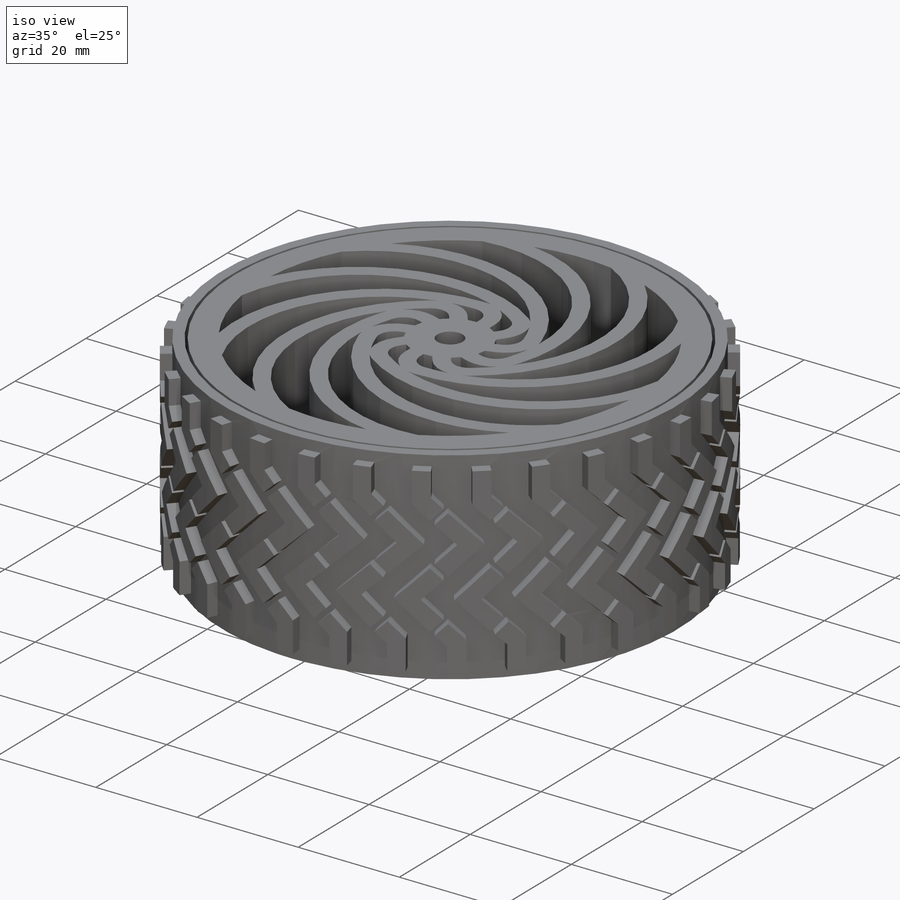
[diagram: iso view]
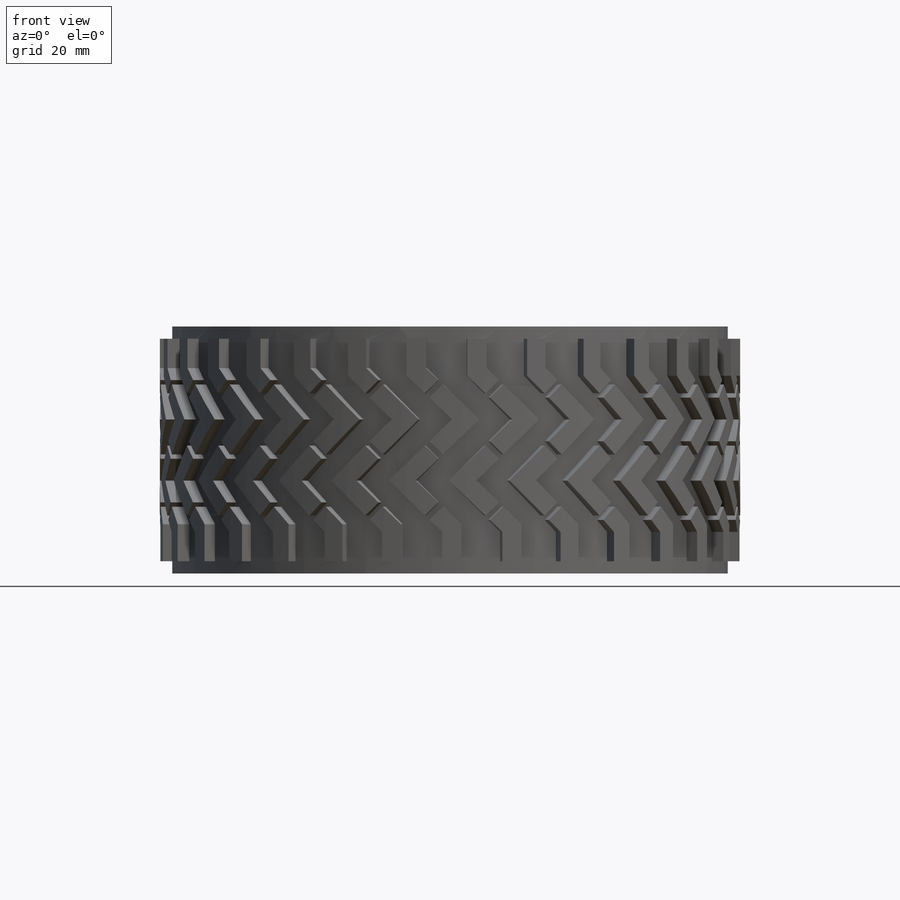
[diagram: front view]
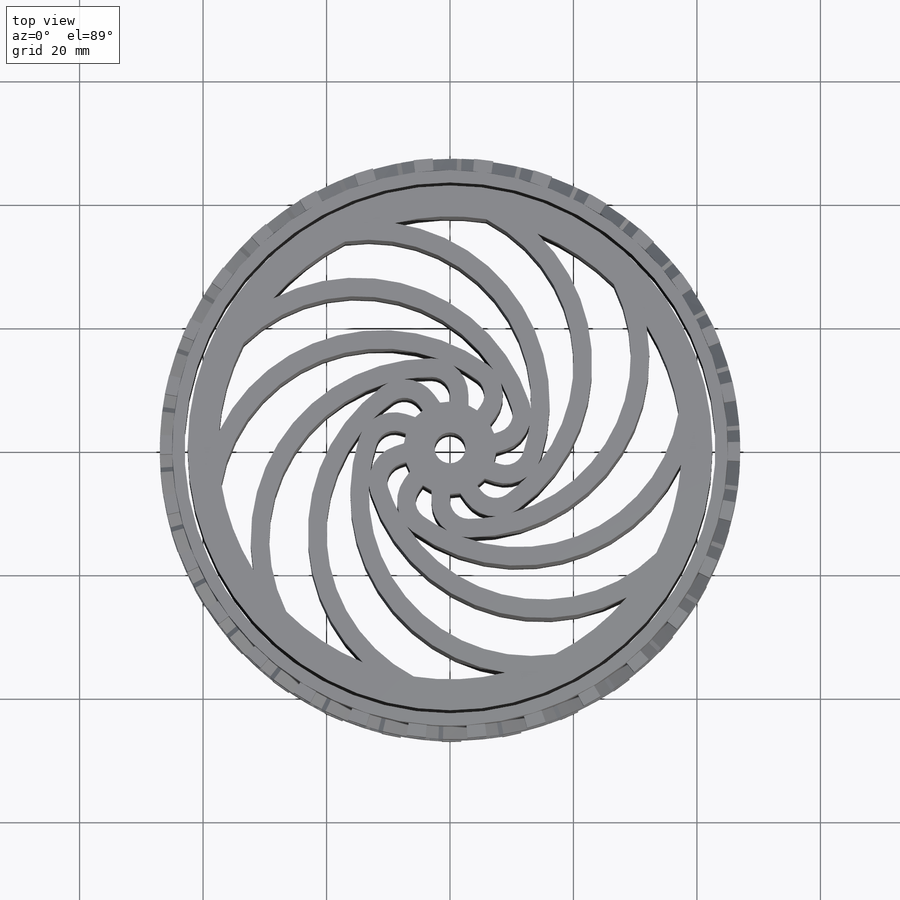
[diagram: top view]
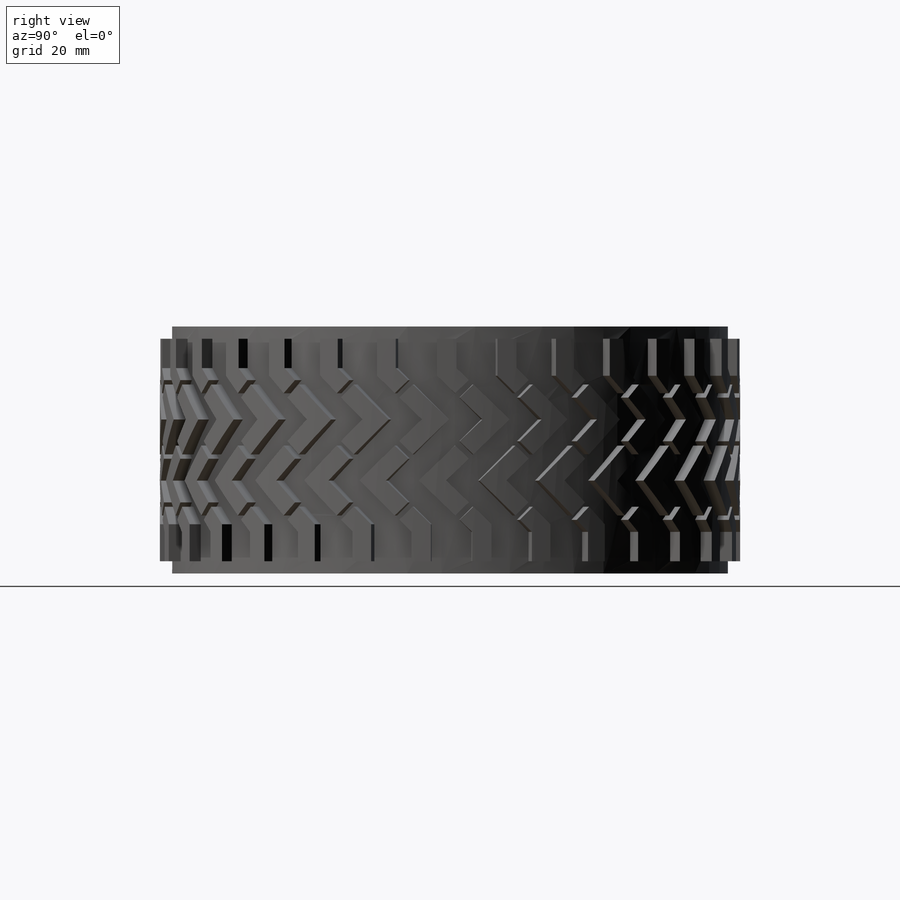
[diagram: right view]
SOLIDWORKS PART (.sldprt)
format: sldprt  version: not decoded by parser v0  size: 2,105,344 bytes
history: native  units: mm
features: sketch x8, extrude x3, pattern_circular x2, material x1, plane x1, sweep x1, cut_extrude x1 (+12 scaffold rows collapsed)
feature tree (29):
  scaffold x12  (default folders/planes/origin — collapsed)
  material  "Material <not specified>"
  sketch  "Sketch1"  dims[c1.D1=15.0mm c1.D3=5.0mm c1.D4=~33.139431mm c1.D5=75.0mm c1.D2=7.5mm c2.D4=3.0mm c2.D6=~25.42633mm c2.D8=~14.915508mm c2.D2=5.0mm c3.D4=5.0mm c3.D3=7.5mm c4.D4=7.5mm c4.D2=4.0mm c4.D3=4.0mm c4.D6=~18.000739mm c5.D6=45.0deg c5.D7=~13.463429mm c6.D7=45.0deg c6.D8=~3.421868mm]
  plane  "Plane1"
  sketch  "Sketch4"  dims[c1.D1=~0.953332mm c1.D2=~1.904352mm c2.D1=~12.147167mm c2.D2=~2.350835mm c3.D1=40.0mm c3.D2=5.0mm]
  sketch  "Sketch5"  dims[D1=75.0mm D2=5.0mm]
  sketch  "Sketch6"  dims[c1.D1=~13.877509mm c1.D2=~3.447502mm c2.D1=40.0mm c2.D2=3.0mm]
  sweep  "Single Spoke"
  sketch  "Sketch7"  dims[D1=15.0mm]
  extrude  "Hub Extrusion"  [1 undecoded]
  pattern_circular  "Spoke Copy"  Count=10 Angle=360deg
  sketch  "Sketch8"  dims[D1=5.0mm]
  cut_extrude  "Hub hole"  [1 undecoded]
  extrude  "Outer Rim"  [1 undecoded]
  sketch  "Sketch10"  dims[D1=86.0mm D2=2.0mm]
  extrude  "Boss-Extrude2"  [1 undecoded]
  sketch  "Sketch9"  dims[c1.D5=~1.566283mm c1.D1=~11.297391mm c1.D2=~6.184597mm c2.D1=~39.830676mm c2.D2=~5.627948mm c3.D1=40.0mm c3.D2=5.0mm c3.D3=4.0mm c3.D4=3.0mm c4.D3=8.0mm c4.D5=~5.298067mm c4.D4=3.0mm c5.D5=3.0mm c5.D6=1.0mm c5.D7=3.0mm c5.D8=4.0mm c5.D9=6.0mm c5.D10=~2.12132mm c5.D11=~3.614061mm c6.D10=0.5mm c6.D11=~1.262703mm c7.D10=5.0mm c8.D10=45.0deg c9.D10=0.5mm c9.D1=2.0mm]
  pattern_circular  "Tread Copy"  Count=30 Angle=360deg
decode coverage: 10 of 15 modeling features carry decoded parameters
note: ~ marks probable driven/reference dimensions
note: 4 parameter values undecoded
summary: no parameter record found for 4 features
note: suppression state not decoded; provenance and decode notes live in map.json
